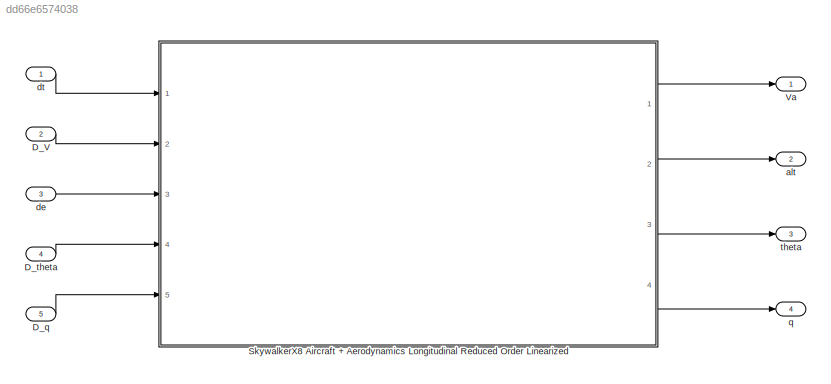
MODEL slx_dd66e6574038
KIND model
CONFIG AbsTol = auto
CONFIG EnableMultiTasking = off
CONFIG FixedStep = 0.02
CONFIG MaxStep = auto
CONFIG MinStep = auto
CONFIG RelTol = 1e-3
CONFIG SampleTimeConstraint = Unconstrained
CONFIG Solver = FixedStepAuto
CONFIG SolverName = FixedStepAuto
CONFIG StartTime = 0.0
CONFIG StopTime = 10.0
BLOCK [Inport] D_V
  IconDisplay = Port number
  Port = 2
BLOCK [Inport] D_q
  IconDisplay = Port number
  Port = 5
BLOCK [Inport] D_theta
  IconDisplay = Port number
  Port = 4
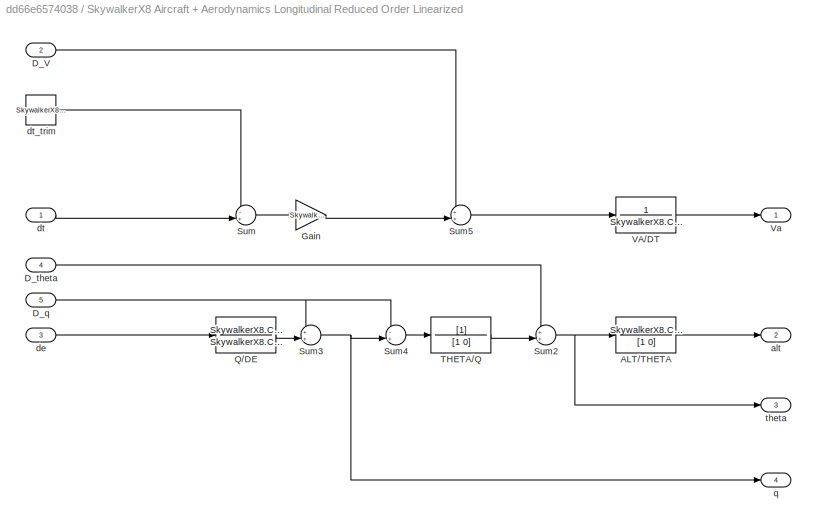
BLOCK [SubSystem] SkywalkerX8 Aircraft + Aerodynamics Longitudinal Reduced Order Linearized
  Ports = [5, 4]
  RequestExecContextInheritance = off
BLOCK [TransferFcn] SkywalkerX8 Aircraft + Aerodynamics Longitudinal Reduced Order Linearized/ALT//THETA
  Denominator = [1 0]
  Numerator = SkywalkerX8.Control.Longitudinal.AlgebraicDesign.ReducedOrderModel.Va_trim
BLOCK [Inport] SkywalkerX8 Aircraft + Aerodynamics Longitudinal Reduced Order Linearized/D_V
  IconDisplay = Port number
  Port = 2
BLOCK [Inport] SkywalkerX8 Aircraft + Aerodynamics Longitudinal Reduced Order Linearized/D_q
  IconDisplay = Port number
  Port = 5
BLOCK [Inport] SkywalkerX8 Aircraft + Aerodynamics Longitudinal Reduced Order Linearized/D_theta
  IconDisplay = Port number
  Port = 4
BLOCK [Gain] SkywalkerX8 Aircraft + Aerodynamics Longitudinal Reduced Order Linearized/Gain
  Gain = SkywalkerX8.Control.Longitudinal.AlgebraicDesign.ReducedOrderModel.Vadt_Numerator
  OutDataTypeStr = Inherit: Inherit via internal rule
  ParamDataTypeStr = Inherit: Inherit via internal rule
  SaturateOnIntegerOverflow = off
BLOCK [TransferFcn] SkywalkerX8 Aircraft + Aerodynamics Longitudinal Reduced Order Linearized/Q//DE
  Denominator = SkywalkerX8.Control.Longitudinal.AlgebraicDesign.ReducedOrderModel.QDE_Denominator
  Numerator = SkywalkerX8.Control.Longitudinal.AlgebraicDesign.ReducedOrderModel.QDE_Numerator
BLOCK [Sum] SkywalkerX8 Aircraft + Aerodynamics Longitudinal Reduced Order Linearized/Sum
  IconShape = round
  InputSameDT = off
  Inputs = -+|
  OutDataTypeStr = Inherit: Inherit via internal rule
  Ports = [2, 1]
  SaturateOnIntegerOverflow = off
BLOCK [Sum] SkywalkerX8 Aircraft + Aerodynamics Longitudinal Reduced Order Linearized/Sum2
  IconShape = round
  InputSameDT = off
  Inputs = ++|
  OutDataTypeStr = Inherit: Inherit via internal rule
  Ports = [2, 1]
  SaturateOnIntegerOverflow = off
BLOCK [Sum] SkywalkerX8 Aircraft + Aerodynamics Longitudinal Reduced Order Linearized/Sum3
  IconShape = round
  InputSameDT = off
  Inputs = ++|
  OutDataTypeStr = Inherit: Inherit via internal rule
  Ports = [2, 1]
  SaturateOnIntegerOverflow = off
BLOCK [Sum] SkywalkerX8 Aircraft + Aerodynamics Longitudinal Reduced Order Linearized/Sum4
  IconShape = round
  InputSameDT = off
  Inputs = -+|
  OutDataTypeStr = Inherit: Inherit via internal rule
  Ports = [2, 1]
  SaturateOnIntegerOverflow = off
BLOCK [Sum] SkywalkerX8 Aircraft + Aerodynamics Longitudinal Reduced Order Linearized/Sum5
  IconShape = round
  InputSameDT = off
  Inputs = ++|
  OutDataTypeStr = Inherit: Inherit via internal rule
  Ports = [2, 1]
  SaturateOnIntegerOverflow = off
BLOCK [TransferFcn] SkywalkerX8 Aircraft + Aerodynamics Longitudinal Reduced Order Linearized/THETA//Q
  Denominator = [1 0]
BLOCK [TransferFcn] SkywalkerX8 Aircraft + Aerodynamics Longitudinal Reduced Order Linearized/VA//DT
  Denominator = SkywalkerX8.Control.Longitudinal.AlgebraicDesign.ReducedOrderModel.Vadt_Denominator
  Numerator = 1
BLOCK [Outport] SkywalkerX8 Aircraft + Aerodynamics Longitudinal Reduced Order Linearized/Va
  IconDisplay = Port number
BLOCK [Outport] SkywalkerX8 Aircraft + Aerodynamics Longitudinal Reduced Order Linearized/alt
  IconDisplay = Port number
  Port = 2
BLOCK [Inport] SkywalkerX8 Aircraft + Aerodynamics Longitudinal Reduced Order Linearized/de
  IconDisplay = Port number
  Port = 3
BLOCK [Inport] SkywalkerX8 Aircraft + Aerodynamics Longitudinal Reduced Order Linearized/dt
  IconDisplay = Port number
BLOCK [Constant] SkywalkerX8 Aircraft + Aerodynamics Longitudinal Reduced Order Linearized/dt_trim
  Value = SkywalkerX8.Control.Longitudinal.AlgebraicDesign.ReducedOrderModel.dt_trim
BLOCK [Outport] SkywalkerX8 Aircraft + Aerodynamics Longitudinal Reduced Order Linearized/q
  IconDisplay = Port number
  Port = 4
BLOCK [Outport] SkywalkerX8 Aircraft + Aerodynamics Longitudinal Reduced Order Linearized/theta
  IconDisplay = Port number
  Port = 3
BLOCK [Outport] Va
  IconDisplay = Port number
BLOCK [Outport] alt
  IconDisplay = Port number
  Port = 2
BLOCK [Inport] de
  IconDisplay = Port number
  Port = 3
BLOCK [Inport] dt
  IconDisplay = Port number
BLOCK [Outport] q
  IconDisplay = Port number
  Port = 4
BLOCK [Outport] theta
  IconDisplay = Port number
  Port = 3
LINE D_V:1 -> SkywalkerX8 Aircraft + Aerodynamics Longitudinal Reduced Order Linearized:2
LINE D_q:1 -> SkywalkerX8 Aircraft + Aerodynamics Longitudinal Reduced Order Linearized:5
LINE D_theta:1 -> SkywalkerX8 Aircraft + Aerodynamics Longitudinal Reduced Order Linearized:4
LINE SkywalkerX8 Aircraft + Aerodynamics Longitudinal Reduced Order Linearized/ALT//THETA:1 -> SkywalkerX8 Aircraft + Aerodynamics Longitudinal Reduced Order Linearized/alt:1
LINE SkywalkerX8 Aircraft + Aerodynamics Longitudinal Reduced Order Linearized/D_V:1 -> SkywalkerX8 Aircraft + Aerodynamics Longitudinal Reduced Order Linearized/Sum5:1
NET SkywalkerX8 Aircraft + Aerodynamics Longitudinal Reduced Order Linearized/D_q:1 -> SkywalkerX8 Aircraft + Aerodynamics Longitudinal Reduced Order Linearized/Sum3:1, SkywalkerX8 Aircraft + Aerodynamics Longitudinal Reduced Order Linearized/Sum4:1
LINE SkywalkerX8 Aircraft + Aerodynamics Longitudinal Reduced Order Linearized/D_theta:1 -> SkywalkerX8 Aircraft + Aerodynamics Longitudinal Reduced Order Linearized/Sum2:1
LINE SkywalkerX8 Aircraft + Aerodynamics Longitudinal Reduced Order Linearized/Gain:1 -> SkywalkerX8 Aircraft + Aerodynamics Longitudinal Reduced Order Linearized/Sum5:2
LINE SkywalkerX8 Aircraft + Aerodynamics Longitudinal Reduced Order Linearized/Q//DE:1 -> SkywalkerX8 Aircraft + Aerodynamics Longitudinal Reduced Order Linearized/Sum3:2
NET SkywalkerX8 Aircraft + Aerodynamics Longitudinal Reduced Order Linearized/Sum2:1 -> SkywalkerX8 Aircraft + Aerodynamics Longitudinal Reduced Order Linearized/ALT//THETA:1, SkywalkerX8 Aircraft + Aerodynamics Longitudinal Reduced Order Linearized/theta:1
NET SkywalkerX8 Aircraft + Aerodynamics Longitudinal Reduced Order Linearized/Sum3:1 -> SkywalkerX8 Aircraft + Aerodynamics Longitudinal Reduced Order Linearized/Sum4:2, SkywalkerX8 Aircraft + Aerodynamics Longitudinal Reduced Order Linearized/q:1
LINE SkywalkerX8 Aircraft + Aerodynamics Longitudinal Reduced Order Linearized/Sum4:1 -> SkywalkerX8 Aircraft + Aerodynamics Longitudinal Reduced Order Linearized/THETA//Q:1
LINE SkywalkerX8 Aircraft + Aerodynamics Longitudinal Reduced Order Linearized/Sum5:1 -> SkywalkerX8 Aircraft + Aerodynamics Longitudinal Reduced Order Linearized/VA//DT:1
LINE SkywalkerX8 Aircraft + Aerodynamics Longitudinal Reduced Order Linearized/Sum:1 -> SkywalkerX8 Aircraft + Aerodynamics Longitudinal Reduced Order Linearized/Gain:1
LINE SkywalkerX8 Aircraft + Aerodynamics Longitudinal Reduced Order Linearized/THETA//Q:1 -> SkywalkerX8 Aircraft + Aerodynamics Longitudinal Reduced Order Linearized/Sum2:2
LINE SkywalkerX8 Aircraft + Aerodynamics Longitudinal Reduced Order Linearized/VA//DT:1 -> SkywalkerX8 Aircraft + Aerodynamics Longitudinal Reduced Order Linearized/Va:1
LINE SkywalkerX8 Aircraft + Aerodynamics Longitudinal Reduced Order Linearized/de:1 -> SkywalkerX8 Aircraft + Aerodynamics Longitudinal Reduced Order Linearized/Q//DE:1
LINE SkywalkerX8 Aircraft + Aerodynamics Longitudinal Reduced Order Linearized/dt:1 -> SkywalkerX8 Aircraft + Aerodynamics Longitudinal Reduced Order Linearized/Sum:2
LINE SkywalkerX8 Aircraft + Aerodynamics Longitudinal Reduced Order Linearized/dt_trim:1 -> SkywalkerX8 Aircraft + Aerodynamics Longitudinal Reduced Order Linearized/Sum:1
LINE SkywalkerX8 Aircraft + Aerodynamics Longitudinal Reduced Order Linearized:1 -> Va:1
LINE SkywalkerX8 Aircraft + Aerodynamics Longitudinal Reduced Order Linearized:2 -> alt:1
LINE SkywalkerX8 Aircraft + Aerodynamics Longitudinal Reduced Order Linearized:3 -> theta:1
LINE SkywalkerX8 Aircraft + Aerodynamics Longitudinal Reduced Order Linearized:4 -> q:1
LINE de:1 -> SkywalkerX8 Aircraft + Aerodynamics Longitudinal Reduced Order Linearized:3
LINE dt:1 -> SkywalkerX8 Aircraft + Aerodynamics Longitudinal Reduced Order Linearized:1
note: NET lines group one-source signal fan-out (src -> all destinations, sorted); 1:1 wires keep LINE
